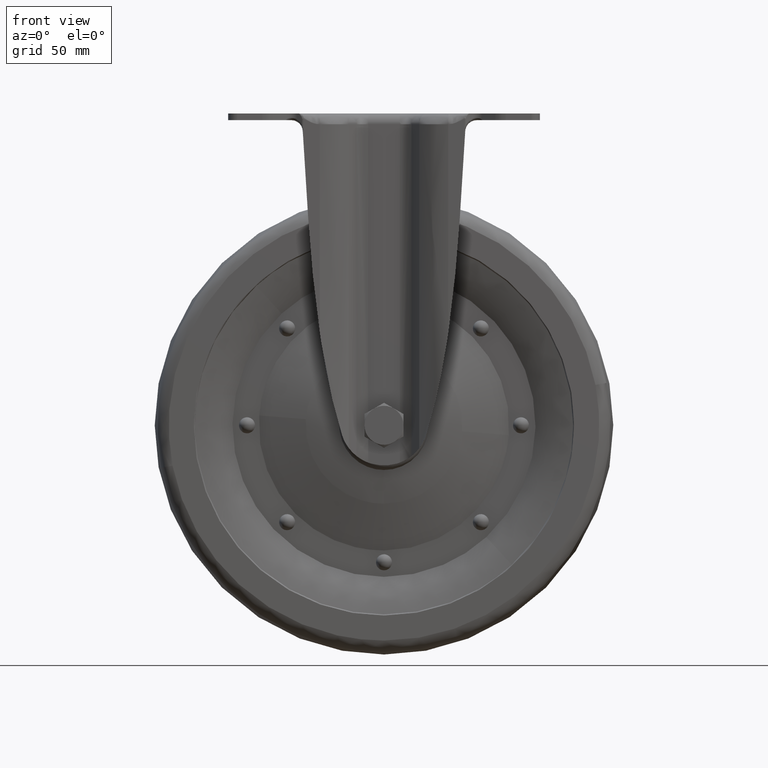
[diagram: clean part render]
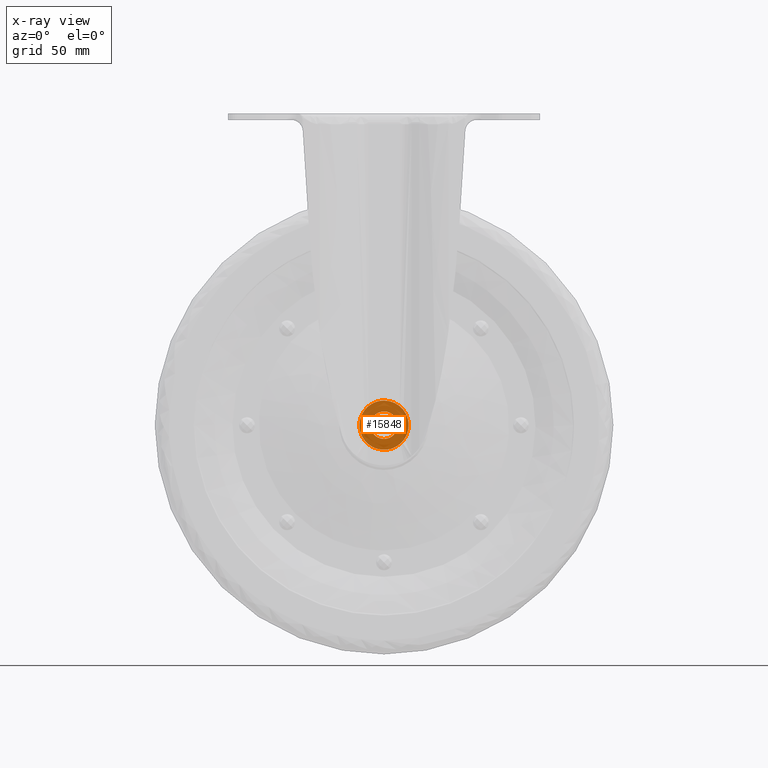
[diagram: x-ray — body ghosted, one internal face saturated and labeled with its STEP entity id]
A machine part, front view, then the same camera in x-ray: the body is ghosted and one INTERNAL B-rep face — a face not visible from any outside direction — is saturated and labeled: STEP entity #15848.
In plain terms, the highlighted face is a freeform B-spline surface patch.
Its self-contained STEP definition (entity closure, byte-faithful):
#15667=CARTESIAN_POINT('',(5.988808790462933,24.149999999999999,-135.633708761674710));
#15668=VERTEX_POINT('',#15667);
#15669=CARTESIAN_POINT('',(0.0,24.149999999999999,-142.0));
#15670=VERTEX_POINT('',#15669);
#15671=CARTESIAN_POINT('',(5.988808790462935,24.149999999999999,-135.633708761674740));
#15672=CARTESIAN_POINT('',(6.0,24.149999999999999,-135.816683419648800));
#15673=CARTESIAN_POINT('',(6.0,24.149999999999999,-136.0));
#15674=CARTESIAN_POINT('',(6.0,24.150000000000009,-142.000000000000090));
#15675=CARTESIAN_POINT('',(0.0,24.149999999999999,-142.0));
#15683=(BOUNDED_CURVE()B_SPLINE_CURVE(2,(#15671,#15672,#15673,#15674,#15675),.UNSPECIFIED.,.F.,.U.)B_SPLINE_CURVE_WITH_KNOTS((3,2,3),(0.239332962209810,0.250000000000000,0.500000000000000),.UNSPECIFIED.)CURVE()GEOMETRIC_REPRESENTATION_ITEM()RATIONAL_B_SPLINE_CURVE((0.976072041604280,0.987502787865706,1.0,0.707106781186548,1.0))REPRESENTATION_ITEM(''));
#15684=EDGE_CURVE('',#15668,#15670,#15683,.T.);
#15693=CARTESIAN_POINT('',(-5.988808790462933,24.149999999999999,-136.366291238325290));
#15694=VERTEX_POINT('',#15693);
#15700=CARTESIAN_POINT('',(0.0,24.149999999999999,-142.0));
#15701=CARTESIAN_POINT('',(-5.644236400380239,24.149999999999999,-141.999999999999970));
#15702=CARTESIAN_POINT('',(-5.988808790462932,24.150000000000006,-136.366291238325350));
#15710=(BOUNDED_CURVE()B_SPLINE_CURVE(2,(#15700,#15701,#15702),.UNSPECIFIED.,.F.,.U.)B_SPLINE_CURVE_WITH_KNOTS((3,3),(0.500000000000000,0.739332962209809),.UNSPECIFIED.)CURVE()GEOMETRIC_REPRESENTATION_ITEM()RATIONAL_B_SPLINE_CURVE((1.0,0.719603993320842,0.976072041604279))REPRESENTATION_ITEM(''));
#15711=EDGE_CURVE('',#15670,#15694,#15710,.T.);
#15734=CARTESIAN_POINT('',(0.0,24.149999999999999,-130.0));
#15735=VERTEX_POINT('',#15734);
#15736=CARTESIAN_POINT('',(0.0,24.149999999999999,-130.0));
#15737=CARTESIAN_POINT('',(5.644236400380263,24.150000000000009,-130.0));
#15738=CARTESIAN_POINT('',(5.988808790462936,24.149999999999999,-135.633708761674740));
#15746=(BOUNDED_CURVE()B_SPLINE_CURVE(2,(#15736,#15737,#15738),.UNSPECIFIED.,.F.,.U.)B_SPLINE_CURVE_WITH_KNOTS((3,3),(0.0,0.239332962209810),.UNSPECIFIED.)CURVE()GEOMETRIC_REPRESENTATION_ITEM()RATIONAL_B_SPLINE_CURVE((1.0,0.719603993320842,0.976072041604280))REPRESENTATION_ITEM(''));
#15747=EDGE_CURVE('',#15735,#15668,#15746,.T.);
#15749=CARTESIAN_POINT('',(-5.988808790462934,24.150000000000002,-136.366291238325320));
#15750=CARTESIAN_POINT('',(-6.0,24.150000000000009,-136.183316580351150));
#15751=CARTESIAN_POINT('',(-6.0,24.149999999999999,-136.0));
#15752=CARTESIAN_POINT('',(-6.0,24.150000000000009,-130.0));
#15753=CARTESIAN_POINT('',(0.0,24.149999999999999,-130.0));
#15761=(BOUNDED_CURVE()B_SPLINE_CURVE(2,(#15749,#15750,#15751,#15752,#15753),.UNSPECIFIED.,.F.,.U.)B_SPLINE_CURVE_WITH_KNOTS((3,2,3),(0.739332962209809,0.750000000000000,1.0),.UNSPECIFIED.)CURVE()GEOMETRIC_REPRESENTATION_ITEM()RATIONAL_B_SPLINE_CURVE((0.976072041604279,0.987502787865705,1.0,0.707106781186548,1.0))REPRESENTATION_ITEM(''));
#15762=EDGE_CURVE('',#15694,#15735,#15761,.T.);
#15771=CARTESIAN_POINT('',(-11.823660211746580,24.149999999999999,-147.823924958328890));
#15772=CARTESIAN_POINT('',(-11.823660211746580,24.149999999999999,-124.176074464996200));
#15773=CARTESIAN_POINT('',(11.823660019521601,24.149999999999999,-147.823924958328890));
#15774=CARTESIAN_POINT('',(11.823660019521601,24.149999999999999,-124.176074464996200));
#15775=B_SPLINE_SURFACE_WITH_KNOTS('',1,1,((#15771,#15773),(#15772,#15774)),.UNSPECIFIED.,.F.,.F.,.U.,(2,2),(2,2),(0.0,23.647850493332630),(0.0,23.647320231268179),.UNSPECIFIED.);
#15776=CARTESIAN_POINT('',(-10.729949082997040,24.149999999999999,-136.656271800621400));
#15777=VERTEX_POINT('',#15776);
#15778=CARTESIAN_POINT('',(0.0,24.149999999999999,-125.250000000000000));
#15779=VERTEX_POINT('',#15778);
#15780=CARTESIAN_POINT('',(-10.729949082997051,24.149999999999999,-136.656271800621450));
#15781=CARTESIAN_POINT('',(-10.749999999999998,24.150000000000002,-136.328442205771550));
#15782=CARTESIAN_POINT('',(-10.750000000000000,24.149999999999999,-136.0));
#15783=CARTESIAN_POINT('',(-10.750000000000000,24.150000000000009,-125.250000000000000));
#15784=CARTESIAN_POINT('',(0.0,24.149999999999999,-125.250000000000000));
#15792=(BOUNDED_CURVE()B_SPLINE_CURVE(2,(#15780,#15781,#15782,#15783,#15784),.UNSPECIFIED.,.F.,.U.)B_SPLINE_CURVE_WITH_KNOTS((3,2,3),(0.739332962231972,0.750000000000000,1.0),.UNSPECIFIED.)CURVE()GEOMETRIC_REPRESENTATION_ITEM()RATIONAL_B_SPLINE_CURVE((0.976072041651777,0.987502787891670,1.0,0.707106781186548,1.0))REPRESENTATION_ITEM(''));
#15793=EDGE_CURVE('',#15777,#15779,#15792,.T.);
#15794=ORIENTED_EDGE('',*,*,#15793,.F.);
#15795=CARTESIAN_POINT('',(0.0,24.149999999999999,-146.750000000000000));
#15796=VERTEX_POINT('',#15795);
#15797=CARTESIAN_POINT('',(0.0,24.149999999999999,-146.750000000000000));
#15798=CARTESIAN_POINT('',(-10.112590218649244,24.150000000000009,-146.750000000000030));
#15799=CARTESIAN_POINT('',(-10.729949082997047,24.150000000000006,-136.656271800621430));
#15807=(BOUNDED_CURVE()B_SPLINE_CURVE(2,(#15797,#15798,#15799),.UNSPECIFIED.,.F.,.U.)B_SPLINE_CURVE_WITH_KNOTS((3,3),(0.500000000000000,0.739332962231972),.UNSPECIFIED.)CURVE()GEOMETRIC_REPRESENTATION_ITEM()RATIONAL_B_SPLINE_CURVE((1.0,0.719603993294878,0.976072041651777))REPRESENTATION_ITEM(''));
#15808=EDGE_CURVE('',#15796,#15777,#15807,.T.);
#15809=ORIENTED_EDGE('',*,*,#15808,.F.);
#15810=CARTESIAN_POINT('',(10.729949082997051,24.150000000000009,-135.343728199378600));
#15811=VERTEX_POINT('',#15810);
#15812=CARTESIAN_POINT('',(10.729949082997054,24.150000000000009,-135.343728199378630));
#15813=CARTESIAN_POINT('',(10.750000000000002,24.150000000000009,-135.671557794228480));
#15814=CARTESIAN_POINT('',(10.750000000000000,24.149999999999999,-136.0));
#15815=CARTESIAN_POINT('',(10.750000000000000,24.150000000000009,-146.750000000000060));
#15816=CARTESIAN_POINT('',(0.0,24.149999999999999,-146.750000000000000));
#15824=(BOUNDED_CURVE()B_SPLINE_CURVE(2,(#15812,#15813,#15814,#15815,#15816),.UNSPECIFIED.,.F.,.U.)B_SPLINE_CURVE_WITH_KNOTS((3,2,3),(0.239332962231971,0.250000000000000,0.500000000000000),.UNSPECIFIED.)CURVE()GEOMETRIC_REPRESENTATION_ITEM()RATIONAL_B_SPLINE_CURVE((0.976072041651776,0.987502787891670,1.0,0.707106781186548,1.0))REPRESENTATION_ITEM(''));
#15825=EDGE_CURVE('',#15811,#15796,#15824,.T.);
#15826=ORIENTED_EDGE('',*,*,#15825,.F.);
#15827=CARTESIAN_POINT('',(0.0,24.149999999999999,-125.250000000000000));
#15828=CARTESIAN_POINT('',(10.112590218649276,24.150000000000002,-125.250000000000000));
#15829=CARTESIAN_POINT('',(10.729949082997054,24.150000000000009,-135.343728199378690));
#15837=(BOUNDED_CURVE()B_SPLINE_CURVE(2,(#15827,#15828,#15829),.UNSPECIFIED.,.F.,.U.)B_SPLINE_CURVE_WITH_KNOTS((3,3),(0.0,0.239332962231972),.UNSPECIFIED.)CURVE()GEOMETRIC_REPRESENTATION_ITEM()RATIONAL_B_SPLINE_CURVE((1.0,0.719603993294877,0.976072041651778))REPRESENTATION_ITEM(''));
#15838=EDGE_CURVE('',#15779,#15811,#15837,.T.);
#15839=ORIENTED_EDGE('',*,*,#15838,.F.);
#15840=EDGE_LOOP('',(#15794,#15809,#15826,#15839));
#15841=FACE_OUTER_BOUND('',#15840,.T.);
#15842=ORIENTED_EDGE('',*,*,#15711,.T.);
#15843=ORIENTED_EDGE('',*,*,#15762,.T.);
#15844=ORIENTED_EDGE('',*,*,#15747,.T.);
#15845=ORIENTED_EDGE('',*,*,#15684,.T.);
#15846=EDGE_LOOP('',(#15842,#15843,#15844,#15845));
#15847=FACE_BOUND('',#15846,.T.);
#15848=ADVANCED_FACE('',(#15841,#15847),#15775,.F.);